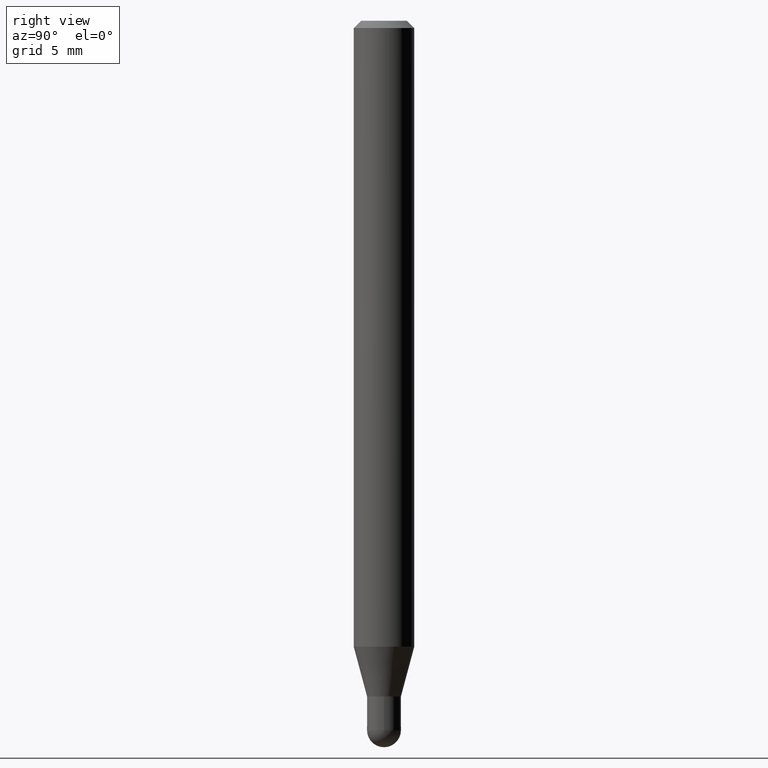
[diagram: clean part render]
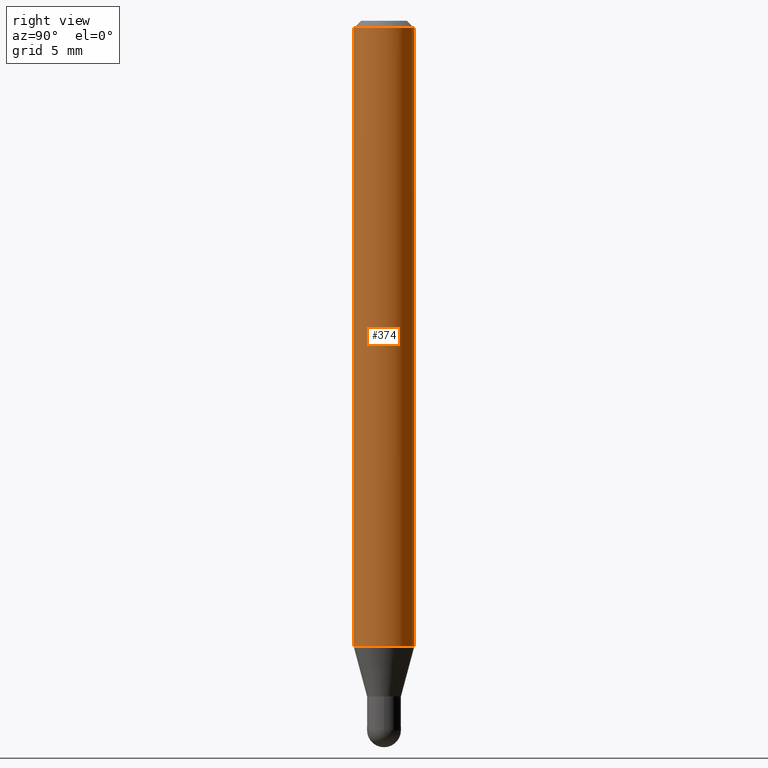
[diagram: same view with one face highlighted and labeled with its STEP entity id]
A machine part, right view. The second image highlights one B-rep face of the part: STEP entity #374.
In plain terms, the highlighted cylindrical surface (edge-blend (fillet) strip) has radius 1.5875 mm, axis along (-0, 0, 1).
Its self-contained STEP definition (entity closure, byte-faithful):
#16 = DIRECTION ( 'NONE',  ( -2.445453003853940643E-29, 3.491503968680831010E-15, 1.000000000000000000 ) ) ;
#24 = CARTESIAN_POINT ( 'NONE',  ( -4.364351673553602629E-16, -0.06250000000000455191, -1.292368602791858612 ) ) ;
#42 = EDGE_LOOP ( 'NONE', ( #449, #190, #368, #86 ) ) ;
#48 = CIRCLE ( 'NONE', #195, 0.06250000000000000000 ) ;
#68 = FACE_OUTER_BOUND ( 'NONE', #42, .T. ) ;
#71 = CARTESIAN_POINT ( 'NONE',  ( -4.364351673553912750E-16, -0.06250000000000005551, -0.01499999999999979128 ) ) ;
#86 = ORIENTED_EDGE ( 'NONE', *, *, #208, .F. ) ;
#93 = VERTEX_POINT ( 'NONE', #24 ) ;
#96 = DIRECTION ( 'NONE',  ( -6.982962677686265922E-15, -1.000000000000000000, 4.370956789862821150E-15 ) ) ;
#105 = LINE ( 'NONE', #288, #204 ) ;
#126 = AXIS2_PLACEMENT_3D ( 'NONE', #153, #307, #315 ) ;
#133 = DIRECTION ( 'NONE',  ( -6.982962677686265922E-15, -1.000000000000000000, 3.483106191921935554E-15 ) ) ;
#138 = VERTEX_POINT ( 'NONE', #378 ) ;
#153 = CARTESIAN_POINT ( 'NONE',  ( 0.000000000000000000, 0.000000000000000000, 0.000000000000000000 ) ) ;
#190 = ORIENTED_EDGE ( 'NONE', *, *, #411, .T. ) ;
#195 = AXIS2_PLACEMENT_3D ( 'NONE', #377, #211, #133 ) ;
#204 = VECTOR ( 'NONE', #430, 39.37007874015748143 ) ;
#208 = EDGE_CURVE ( 'NONE', #93, #459, #105, .T. ) ;
#211 = DIRECTION ( 'NONE',  ( -2.445453003853940643E-29, 3.491503968680831010E-15, 1.000000000000000000 ) ) ;
#221 = CYLINDRICAL_SURFACE ( 'NONE', #126, 0.06250000000000000000 ) ;
#229 = DIRECTION ( 'NONE',  ( -2.445453003853940643E-29, 3.491503968680831010E-15, 1.000000000000000000 ) ) ;
#284 = EDGE_CURVE ( 'NONE', #93, #298, #461, .T. ) ;
#288 = CARTESIAN_POINT ( 'NONE',  ( -4.364351673553916201E-16, -0.06250000000000000000, 2.182189980425519382E-16 ) ) ;
#298 = VERTEX_POINT ( 'NONE', #383 ) ;
#307 = DIRECTION ( 'NONE',  ( -2.445453003853940643E-29, 3.491503968680831010E-15, 1.000000000000000000 ) ) ;
#313 = EDGE_CURVE ( 'NONE', #459, #138, #48, .T. ) ;
#315 = DIRECTION ( 'NONE',  ( -6.982962677686265922E-15, -1.000000000000000000, 3.491503968680831010E-15 ) ) ;
#368 = ORIENTED_EDGE ( 'NONE', *, *, #313, .F. ) ;
#374 = ADVANCED_FACE ( 'NONE', ( #68 ), #221, .T. ) ;
#377 = CARTESIAN_POINT ( 'NONE',  ( 3.668179505780913400E-31, -5.237255953021249622E-17, -0.01500000000000000812 ) ) ;
#378 = CARTESIAN_POINT ( 'NONE',  ( 4.440892098500943678E-16, 0.06249999999999995143, -0.01500000000000022669 ) ) ;
#383 = CARTESIAN_POINT ( 'NONE',  ( 4.440892098500939734E-16, 0.06249999999999544809, -1.292368602791859056 ) ) ;
#391 = CARTESIAN_POINT ( 'NONE',  ( 4.440892098500625669E-16, 0.06250000000000000000, -2.182189980425519382E-16 ) ) ;
#394 = LINE ( 'NONE', #391, #499 ) ;
#399 = AXIS2_PLACEMENT_3D ( 'NONE', #450, #16, #96 ) ;
#411 = EDGE_CURVE ( 'NONE', #298, #138, #394, .T. ) ;
#430 = DIRECTION ( 'NONE',  ( -2.445453003853940643E-29, 3.491503968680831010E-15, 1.000000000000000000 ) ) ;
#449 = ORIENTED_EDGE ( 'NONE', *, *, #284, .T. ) ;
#450 = CARTESIAN_POINT ( 'NONE',  ( 3.160426681783871860E-29, -4.512310105646275216E-15, -1.292368602791858834 ) ) ;
#459 = VERTEX_POINT ( 'NONE', #71 ) ;
#461 = CIRCLE ( 'NONE', #399, 0.06250000000000000000 ) ;
#499 = VECTOR ( 'NONE', #229, 39.37007874015748143 ) ;